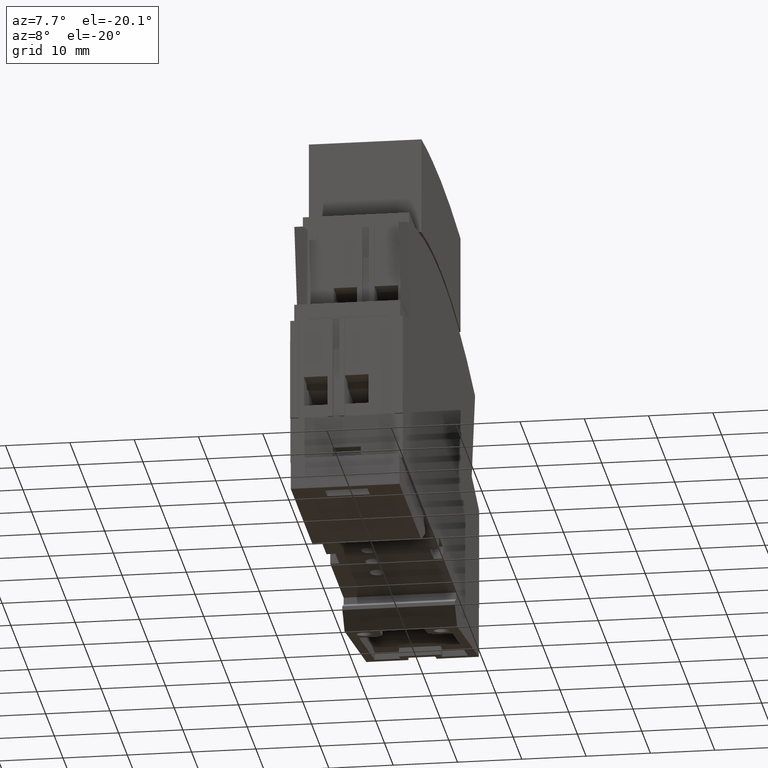
[diagram: clean part render]
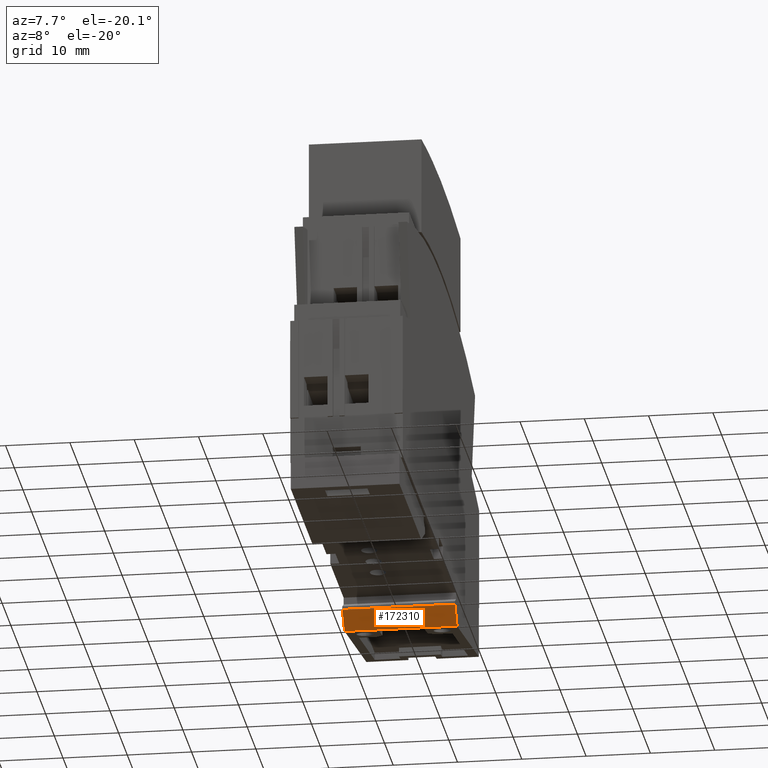
[diagram: same view with one face highlighted and labeled with its STEP entity id]
A machine part, auxiliary view. The second image highlights one B-rep face of the part: STEP entity #172310.
In plain terms, the highlighted planar face has unit normal (-0, 0.7083, 0.7059).
Its self-contained STEP definition (entity closure, byte-faithful):
#65700=CARTESIAN_POINT('',(1.14413399908865,-5.10882095074802,17.5));
#65710=VERTEX_POINT('',#65700);
#65740=CARTESIAN_POINT('',(-11.9190082123887,8.00000000000001,17.5));
#65750=DIRECTION('',(0.705871570678684,-0.708339837724526,0.));
#65760=VECTOR('',#65750,1.);
#65770=LINE('',#65740,#65760);
#65780=CARTESIAN_POINT('',(-1.49502992345568,-2.46042849200957,17.5));
#65790=VERTEX_POINT('',#65780);
#65800=EDGE_CURVE('',#65790,#65710,#65770,.T.);
#113680=CARTESIAN_POINT('',(1.14413399908865,-5.10882095074802,0.));
#113690=VERTEX_POINT('',#113680);
#113720=CARTESIAN_POINT('',(1.1441339990885,-5.10882095074804,0.));
#113730=DIRECTION('',(1.35525271560688E-20,-2.95823043372963E-31,1.));
#113740=VECTOR('',#113730,1.);
#113750=LINE('',#113720,#113740);
#113760=EDGE_CURVE('',#113690,#65710,#113750,.T.);
#121460=CARTESIAN_POINT('',(-1.49502992345568,-2.46042849200958,0.));
#121470=VERTEX_POINT('',#121460);
#121500=CARTESIAN_POINT('',(-58.2127663847688,54.4556365684956,
-3.5527136788005E-15));
#121510=DIRECTION('',(0.705871570678684,-0.708339837724526,
-9.56634363049442E-21));
#121520=VECTOR('',#121510,1.);
#121530=LINE('',#121500,#121520);
#121540=EDGE_CURVE('',#121470,#113690,#121530,.T.);
#172040=CARTESIAN_POINT('',(-1.49502992345568,-2.46042849200949,0.));
#172050=DIRECTION('',(1.35525271560688E-20,-2.95823690531113E-31,1.));
#172060=VECTOR('',#172050,1.);
#172070=LINE('',#172040,#172060);
#172080=EDGE_CURVE('',#121470,#65790,#172070,.T.);
#172200=CARTESIAN_POINT('',(-1.49502992345566,-2.46042849200951,
-3.5527136788005E-15));
#172210=DIRECTION('',(0.708339837724526,0.705871570678684,
-9.59979488627819E-21));
#172220=DIRECTION('',(-0.705871570678684,0.708339837724526,
9.56634363049442E-21));
#172230=AXIS2_PLACEMENT_3D('',#172200,#172210,#172220);
#172240=PLANE('',#172230);
#172250=ORIENTED_EDGE('',*,*,#121540,.T.);
#172260=ORIENTED_EDGE('',*,*,#172080,.F.);
#172270=ORIENTED_EDGE('',*,*,#65800,.F.);
#172280=ORIENTED_EDGE('',*,*,#113760,.T.);
#172290=EDGE_LOOP('',(#172280,#172270,#172260,#172250));
#172300=FACE_OUTER_BOUND('',#172290,.T.);
#172310=ADVANCED_FACE('',(#172300),#172240,.F.);